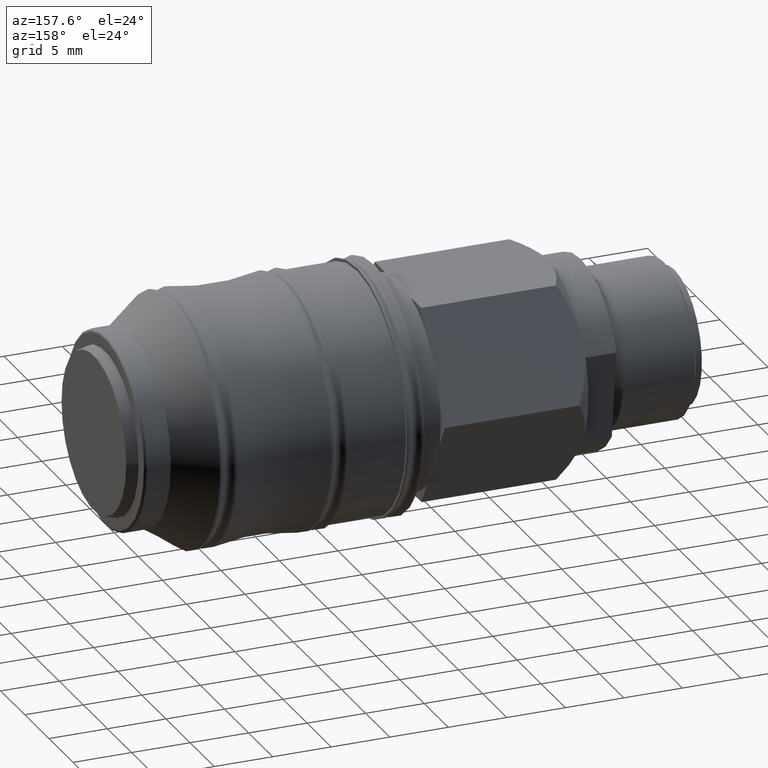
[diagram: clean part render]
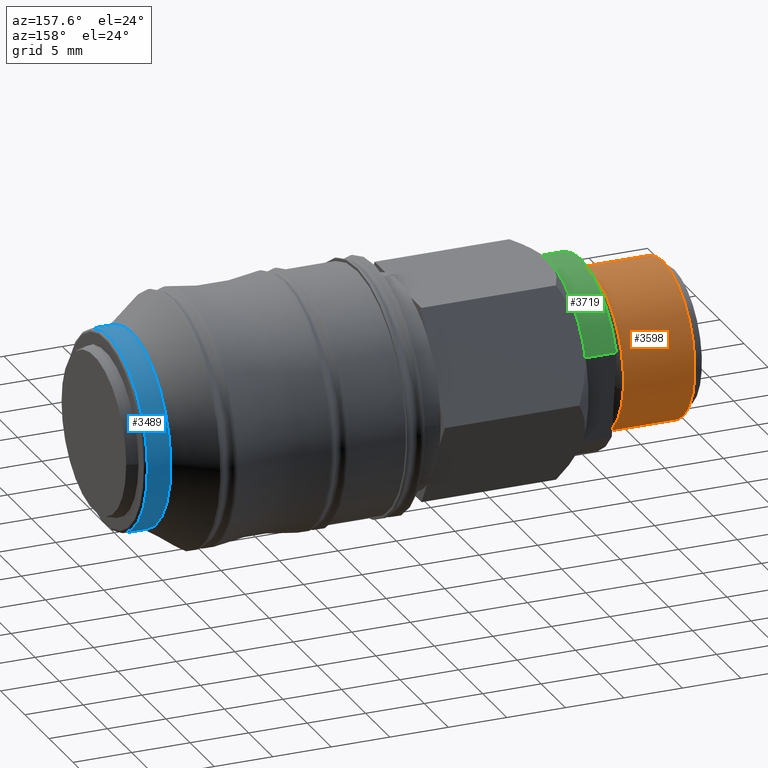
[diagram: same view with three faces highlighted in distinct colors, each labeled with its STEP entity id]
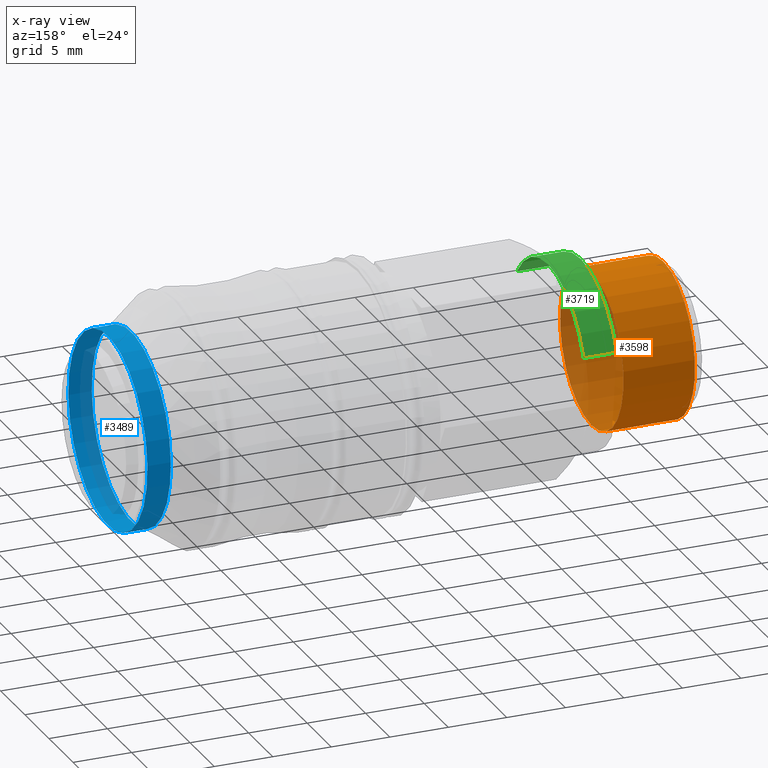
[diagram: x-ray of the same camera — body ghosted, the three highlighted faces saturated]
A machine part, auxiliary view with three faces highlighted in distinct colors.
The next image is the same camera in x-ray (body ghosted, the three faces saturated) — at least one of them is partly hidden behind the body in this view.
Their STEP definitions:

[orange] entity #3598 — the highlighted cylindrical surface (bore or boss wall) has radius 6.5785 mm, axis along (-1, 0, 0).
#3567=CARTESIAN_POINT('',(-9.854394604727698,6.525797530554981,-0.831040817410623));
#3568=VERTEX_POINT('',#3567);
#3569=CARTESIAN_POINT('',(-9.854394604727698,0.0,0.0));
#3570=DIRECTION('',(-1.0,0.0,0.0));
#3571=DIRECTION('',(0.0,0.991988679874589,-0.126326794468439));
#3572=AXIS2_PLACEMENT_3D('',#3569,#3570,#3571);
#3573=CIRCLE('',#3572,6.5785);
#3574=EDGE_CURVE('',#3568,#3568,#3573,.T.);
#3579=CARTESIAN_POINT('',(-6.799999999999993,0.0,0.0));
#3580=DIRECTION('',(-1.0,0.0,0.0));
#3581=DIRECTION('',(0.0,0.991988679874589,-0.126326794468439));
#3582=AXIS2_PLACEMENT_3D('',#3579,#3580,#3581);
#3583=CYLINDRICAL_SURFACE('',#3582,6.578500000000001);
#3584=ORIENTED_EDGE('',*,*,#3574,.F.);
#3585=EDGE_LOOP('',(#3584));
#3586=FACE_OUTER_BOUND('',#3585,.T.);
#3587=CARTESIAN_POINT('',(-3.745605395272287,6.525797530554982,-0.831040817410623));
#3588=VERTEX_POINT('',#3587);
#3589=CARTESIAN_POINT('',(-3.745605395272287,0.0,0.0));
#3590=DIRECTION('',(-1.0,0.0,0.0));
#3591=DIRECTION('',(0.0,0.991988679874589,-0.126326794468439));
#3592=AXIS2_PLACEMENT_3D('',#3589,#3590,#3591);
#3593=CIRCLE('',#3592,6.578500000000001);
#3594=EDGE_CURVE('',#3588,#3588,#3593,.T.);
#3595=ORIENTED_EDGE('',*,*,#3594,.T.);
#3596=EDGE_LOOP('',(#3595));
#3597=FACE_BOUND('',#3596,.T.);
#3598=ADVANCED_FACE('',(#3586,#3597),#3583,.T.);

[blue] entity #3489 — the highlighted cylindrical surface (bore or boss wall) has radius 8.2 mm, axis along (-1, 0, -0).
#3458=CARTESIAN_POINT('',(35.600000000000009,-8.1946105460233,-0.297250734235741));
#3459=VERTEX_POINT('',#3458);
#3460=CARTESIAN_POINT('',(35.600000000000016,1.762102E-016,-9.329413E-017));
#3461=DIRECTION('',(-1.0,7.671066E-017,2.782597E-018));
#3462=DIRECTION('',(-7.676111E-017,-0.999342749515037,-0.036250089540944));
#3463=AXIS2_PLACEMENT_3D('',#3460,#3461,#3462);
#3464=CIRCLE('',#3463,8.199999999999998);
#3465=EDGE_CURVE('',#3459,#3459,#3464,.T.);
#3470=CARTESIAN_POINT('',(36.725000000000009,8.810511E-017,-4.664706E-017));
#3471=DIRECTION('',(-1.0,7.831566E-017,-4.146406E-017));
#3472=DIRECTION('',(-7.676111E-017,-0.999342749515037,-0.036250089540944));
#3473=AXIS2_PLACEMENT_3D('',#3470,#3471,#3472);
#3474=CYLINDRICAL_SURFACE('',#3473,8.200000000000001);
#3475=ORIENTED_EDGE('',*,*,#3465,.F.);
#3476=EDGE_LOOP('',(#3475));
#3477=FACE_OUTER_BOUND('',#3476,.T.);
#3478=CARTESIAN_POINT('',(37.599999999999994,-8.194610546023302,-0.297250734235743));
#3479=VERTEX_POINT('',#3478);
#3480=CARTESIAN_POINT('',(37.599999999999994,1.957891E-017,-1.036601E-017));
#3481=DIRECTION('',(1.0,-7.671066E-017,-2.782597E-018));
#3482=DIRECTION('',(7.676111E-017,0.999342749515037,0.036250089540944));
#3483=AXIS2_PLACEMENT_3D('',#3480,#3481,#3482);
#3484=CIRCLE('',#3483,8.199999999999999);
#3485=EDGE_CURVE('',#3479,#3479,#3484,.T.);
#3486=ORIENTED_EDGE('',*,*,#3485,.F.);
#3487=EDGE_LOOP('',(#3486));
#3488=FACE_BOUND('',#3487,.T.);
#3489=ADVANCED_FACE('',(#3477,#3488),#3474,.T.);

[green] entity #3719 — the highlighted cylindrical surface (partial cylindrical patch) has radius 8 mm, axis along (-1, 0, 0).
#1397=CARTESIAN_POINT('',(8.881784E-015,-6.454659187966091,4.726243198059631));
#1398=VERTEX_POINT('',#1397);
#1416=CARTESIAN_POINT('',(8.881784E-015,7.433182330278151,2.957668075501493));
#1417=VERTEX_POINT('',#1416);
#1424=CARTESIAN_POINT('',(-5.551115E-016,0.0,0.0));
#1425=DIRECTION('',(1.0,0.0,0.0));
#1426=DIRECTION('',(0.0,0.991988679874589,-0.126326794468439));
#1427=AXIS2_PLACEMENT_3D('',#1424,#1425,#1426);
#1428=CIRCLE('',#1427,8.0);
#1429=EDGE_CURVE('',#1417,#1398,#1428,.T.);
#3678=CARTESIAN_POINT('',(-2.799999999999991,7.433182330278151,2.957668075501493));
#3679=VERTEX_POINT('',#3678);
#3686=CARTESIAN_POINT('',(8.881784E-015,7.433182330278151,2.957668075501493));
#3687=DIRECTION('',(-1.0,0.0,0.0));
#3688=VECTOR('',#3687,2.8);
#3689=LINE('',#3686,#3688);
#3690=EDGE_CURVE('',#1417,#3679,#3689,.T.);
#3695=CARTESIAN_POINT('',(-1.399999999999991,0.0,0.0));
#3696=DIRECTION('',(-1.0,0.0,0.0));
#3697=DIRECTION('',(0.0,0.991988679874589,-0.126326794468439));
#3698=AXIS2_PLACEMENT_3D('',#3695,#3696,#3697);
#3699=CYLINDRICAL_SURFACE('',#3698,8.0);
#3700=CARTESIAN_POINT('',(-2.799999999999991,-6.454659187966091,4.726243198059631));
#3701=VERTEX_POINT('',#3700);
#3702=CARTESIAN_POINT('',(-2.799999999999991,-6.454659187966091,4.726243198059631));
#3703=DIRECTION('',(1.0,0.0,0.0));
#3704=VECTOR('',#3703,2.8);
#3705=LINE('',#3702,#3704);
#3706=EDGE_CURVE('',#3701,#1398,#3705,.T.);
#3707=ORIENTED_EDGE('',*,*,#3706,.T.);
#3708=ORIENTED_EDGE('',*,*,#1429,.F.);
#3709=ORIENTED_EDGE('',*,*,#3690,.T.);
#3710=CARTESIAN_POINT('',(-2.799999999999991,0.0,0.0));
#3711=DIRECTION('',(-1.0,0.0,0.0));
#3712=DIRECTION('',(0.0,0.991988679874589,-0.126326794468439));
#3713=AXIS2_PLACEMENT_3D('',#3710,#3711,#3712);
#3714=CIRCLE('',#3713,8.0);
#3715=EDGE_CURVE('',#3701,#3679,#3714,.T.);
#3716=ORIENTED_EDGE('',*,*,#3715,.F.);
#3717=EDGE_LOOP('',(#3707,#3708,#3709,#3716));
#3718=FACE_OUTER_BOUND('',#3717,.T.);
#3719=ADVANCED_FACE('',(#3718),#3699,.T.);